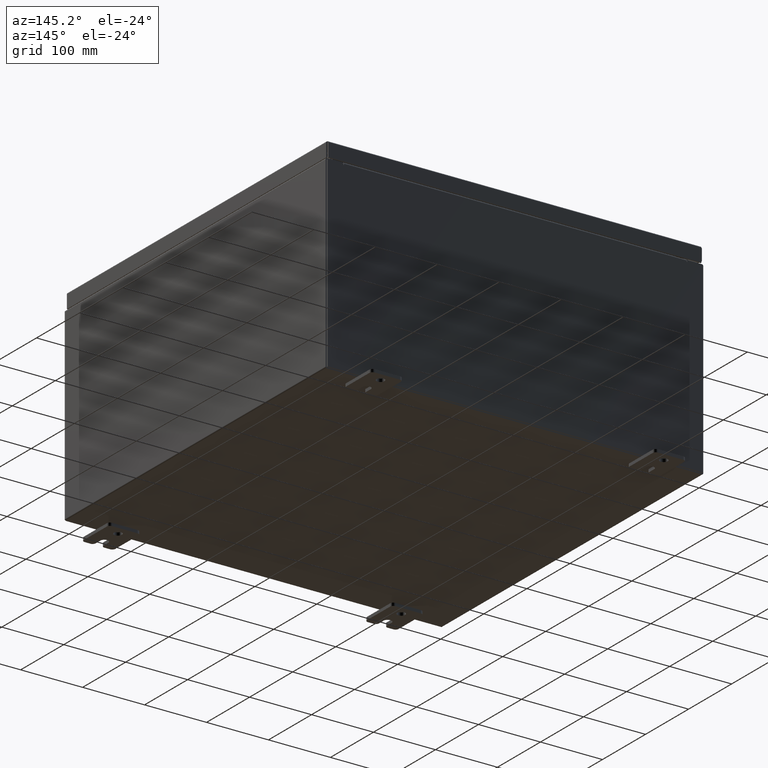
[diagram: clean part render]
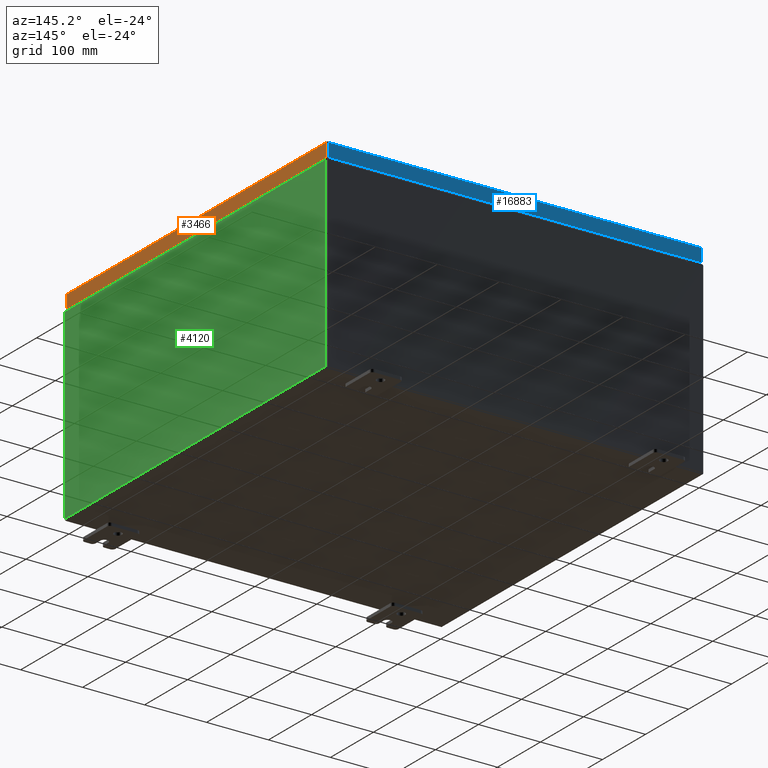
[diagram: same view with three faces highlighted in distinct colors, each labeled with its STEP entity id]
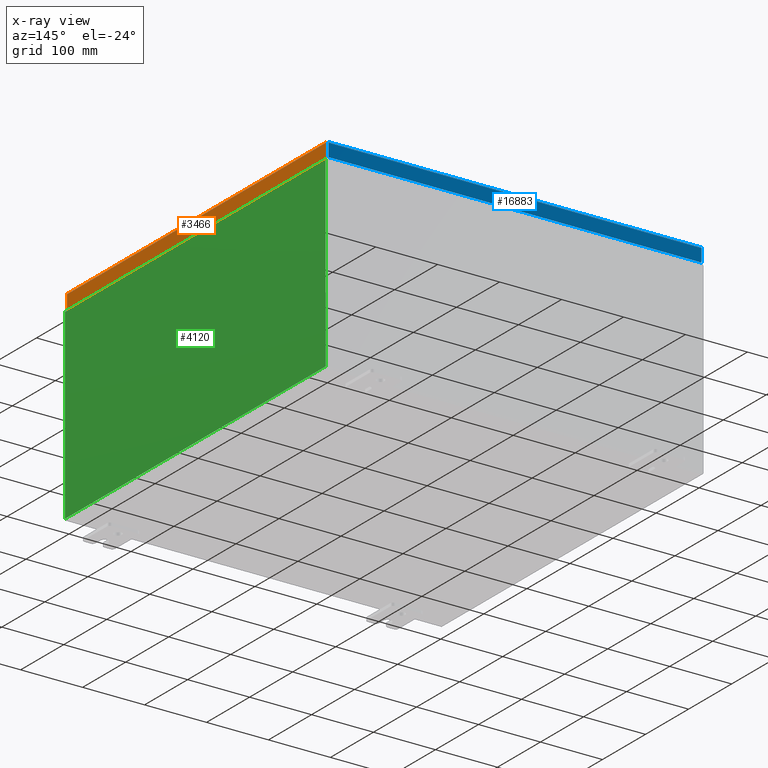
[diagram: x-ray of the same camera — body ghosted, the three highlighted faces saturated]
A machine part, auxiliary view with three faces highlighted in distinct colors.
The next image is the same camera in x-ray (body ghosted, the three faces saturated) — at least one of them is partly hidden behind the body in this view.
Their STEP definitions:

[orange] entity #3466 — the highlighted planar face has unit normal (1, 0, 0).
#841 = CARTESIAN_POINT ( 'NONE',  ( 11.93750000000000200, -11.84865786437626200, -0.9376999999999997600 ) ) ;
#968 = VERTEX_POINT ( 'NONE', #841 ) ;
#1014 = VECTOR ( 'NONE', #34818, 39.37007874015748100 ) ;
#2330 = EDGE_CURVE ( 'NONE', #13234, #37505, #14141, .T. ) ;
#3466 = ADVANCED_FACE ( 'NONE', ( #14070 ), #31506, .T. ) ;
#5226 = EDGE_CURVE ( 'NONE', #37505, #24941, #53107, .T. ) ;
#5248 = VECTOR ( 'NONE', #61123, 39.37007874015748100 ) ;
#5846 = EDGE_LOOP ( 'NONE', ( #26296, #55456, #39901, #57264 ) ) ;
#7068 = CARTESIAN_POINT ( 'NONE',  ( 11.93750000000000200, -11.93750000000000000, -0.9376999999999997600 ) ) ;
#12541 = EDGE_CURVE ( 'NONE', #968, #24941, #36504, .T. ) ;
#13234 = VERTEX_POINT ( 'NONE', #53219 ) ;
#14070 = FACE_OUTER_BOUND ( 'NONE', #5846, .T. ) ;
#14141 = LINE ( 'NONE', #15219, #27248 ) ;
#15077 = DIRECTION ( 'NONE',  ( -2.532419924601866100E-015, -6.982962677686265900E-015, 1.000000000000000000 ) ) ;
#15219 = CARTESIAN_POINT ( 'NONE',  ( 11.93750000000000000, 11.84865786437626900, 1.132303121535597100E-013 ) ) ;
#23758 = CARTESIAN_POINT ( 'NONE',  ( 11.93750000000000000, 0.0000000000000000000, -0.08770000000000008300 ) ) ;
#24941 = VERTEX_POINT ( 'NONE', #53309 ) ;
#24993 = CARTESIAN_POINT ( 'NONE',  ( 11.93750000000000000, 11.84865786437626800, -0.08770000000000008300 ) ) ;
#25102 = VECTOR ( 'NONE', #48928, 39.37007874015748100 ) ;
#26296 = ORIENTED_EDGE ( 'NONE', *, *, #12541, .F. ) ;
#27248 = VECTOR ( 'NONE', #15077, 39.37007874015748100 ) ;
#31506 = PLANE ( 'NONE',  #43637 ) ;
#32349 = DIRECTION ( 'NONE',  ( 1.000000000000000000, 0.0000000000000000000, 2.532419924601866100E-015 ) ) ;
#32818 = LINE ( 'NONE', #7068, #5248 ) ;
#33577 = DIRECTION ( 'NONE',  ( 2.532419924601866100E-015, 0.0000000000000000000, -1.000000000000000000 ) ) ;
#34818 = DIRECTION ( 'NONE',  ( 0.0000000000000000000, -1.000000000000000000, 0.0000000000000000000 ) ) ;
#35525 = CARTESIAN_POINT ( 'NONE',  ( 11.93750000000000000, -11.84865786437626900, -0.07469999999999980800 ) ) ;
#36504 = LINE ( 'NONE', #35525, #25102 ) ;
#37505 = VERTEX_POINT ( 'NONE', #24993 ) ;
#37751 = EDGE_CURVE ( 'NONE', #13234, #968, #32818, .T. ) ;
#38092 = CARTESIAN_POINT ( 'NONE',  ( 11.93750000000000000, 0.0000000000000000000, 3.049157650594635900E-014 ) ) ;
#39901 = ORIENTED_EDGE ( 'NONE', *, *, #2330, .T. ) ;
#43637 = AXIS2_PLACEMENT_3D ( 'NONE', #38092, #32349, #33577 ) ;
#48928 = DIRECTION ( 'NONE',  ( -2.532419924601866100E-015, -6.982962677686265900E-015, 1.000000000000000000 ) ) ;
#53107 = LINE ( 'NONE', #23758, #1014 ) ;
#53219 = CARTESIAN_POINT ( 'NONE',  ( 11.93750000000000200, 11.84865786437627300, -0.9376999999999997600 ) ) ;
#53309 = CARTESIAN_POINT ( 'NONE',  ( 11.93750000000000000, -11.84865786437626900, -0.08770000000000008300 ) ) ;
#55456 = ORIENTED_EDGE ( 'NONE', *, *, #37751, .F. ) ;
#57264 = ORIENTED_EDGE ( 'NONE', *, *, #5226, .T. ) ;
#61123 = DIRECTION ( 'NONE',  ( 0.0000000000000000000, -1.000000000000000000, 0.0000000000000000000 ) ) ;

[blue] entity #16883 — the highlighted planar face has unit normal (0, -1, -0).
#695 = DIRECTION ( 'NONE',  ( -0.0000000000000000000, 2.532419924601857400E-015, -1.000000000000000000 ) ) ;
#960 = DIRECTION ( 'NONE',  ( 1.000000000000000000, -4.379057701015054300E-047, 1.258652478756310100E-016 ) ) ;
#1069 = FACE_OUTER_BOUND ( 'NONE', #2265, .T. ) ;
#2265 = EDGE_LOOP ( 'NONE', ( #6024, #11225, #41343, #13435 ) ) ;
#2601 = CARTESIAN_POINT ( 'NONE',  ( 11.84865786437626900, 11.93750000000000200, -0.9376999999999997600 ) ) ;
#3866 = CARTESIAN_POINT ( 'NONE',  ( -3.805002459576444600E-030, 11.93750000000000000, 3.049157650594625800E-014 ) ) ;
#4661 = VERTEX_POINT ( 'NONE', #2601 ) ;
#4976 = CARTESIAN_POINT ( 'NONE',  ( 11.84865786437626900, 11.93750000000000000, -0.08769999999999789100 ) ) ;
#5503 = DIRECTION ( 'NONE',  ( 0.0000000000000000000, 2.532419924601857400E-015, -1.000000000000000000 ) ) ;
#6024 = ORIENTED_EDGE ( 'NONE', *, *, #28487, .F. ) ;
#7820 = CARTESIAN_POINT ( 'NONE',  ( 11.84865786437626900, 11.93750000000000000, 3.049157650594625800E-014 ) ) ;
#8744 = PLANE ( 'NONE',  #19457 ) ;
#11078 = LINE ( 'NONE', #7820, #34136 ) ;
#11225 = ORIENTED_EDGE ( 'NONE', *, *, #14056, .T. ) ;
#11709 = CARTESIAN_POINT ( 'NONE',  ( -11.93749999999999800, 11.93750000000000000, -0.08770000000000008300 ) ) ;
#12908 = VECTOR ( 'NONE', #695, 39.37007874015748100 ) ;
#13435 = ORIENTED_EDGE ( 'NONE', *, *, #50812, .F. ) ;
#14056 = EDGE_CURVE ( 'NONE', #58765, #4661, #11078, .T. ) ;
#14680 = VERTEX_POINT ( 'NONE', #43753 ) ;
#15050 = VECTOR ( 'NONE', #960, 39.37007874015748100 ) ;
#16702 = DIRECTION ( 'NONE',  ( -1.000000000000000000, -8.693008950959990500E-032, -9.153836209136798400E-017 ) ) ;
#16883 = ADVANCED_FACE ( 'NONE', ( #1069 ), #8744, .F. ) ;
#18669 = DIRECTION ( 'NONE',  ( 0.0000000000000000000, 2.532419924601857400E-015, -1.000000000000000000 ) ) ;
#19039 = LINE ( 'NONE', #11709, #43541 ) ;
#19457 = AXIS2_PLACEMENT_3D ( 'NONE', #3866, #47963, #18669 ) ;
#28487 = EDGE_CURVE ( 'NONE', #58765, #48220, #19039, .T. ) ;
#30266 = CARTESIAN_POINT ( 'NONE',  ( -11.93749999999999800, 11.93750000000000200, -0.9377000000000028600 ) ) ;
#34136 = VECTOR ( 'NONE', #5503, 39.37007874015748100 ) ;
#38909 = CARTESIAN_POINT ( 'NONE',  ( -11.84865786437626600, 11.93750000000000000, -0.08769999999999898700 ) ) ;
#41343 = ORIENTED_EDGE ( 'NONE', *, *, #55551, .F. ) ;
#43541 = VECTOR ( 'NONE', #16702, 39.37007874015748100 ) ;
#43753 = CARTESIAN_POINT ( 'NONE',  ( -11.84865786437626600, 11.93750000000000200, -0.9377000000000028600 ) ) ;
#47963 = DIRECTION ( 'NONE',  ( 3.187436615351995300E-031, -1.000000000000000000, -2.532419924601857400E-015 ) ) ;
#48220 = VERTEX_POINT ( 'NONE', #38909 ) ;
#49547 = LINE ( 'NONE', #30266, #15050 ) ;
#50812 = EDGE_CURVE ( 'NONE', #48220, #14680, #52070, .T. ) ;
#52070 = LINE ( 'NONE', #59409, #12908 ) ;
#55551 = EDGE_CURVE ( 'NONE', #14680, #4661, #49547, .T. ) ;
#58765 = VERTEX_POINT ( 'NONE', #4976 ) ;
#59409 = CARTESIAN_POINT ( 'NONE',  ( -11.84865786437626600, 11.93750000000000000, -0.07469999999999980800 ) ) ;

[green] entity #4120 — the highlighted planar face has unit normal (-1, 0, 0).
#574 = DIRECTION ( 'NONE',  ( -0.0000000000000000000, -1.000000000000000000, -0.0000000000000000000 ) ) ;
#1851 = DIRECTION ( 'NONE',  ( -0.0000000000000000000, -1.000000000000000000, -0.0000000000000000000 ) ) ;
#2991 = VECTOR ( 'NONE', #45314, 39.37007874015748100 ) ;
#4120 = ADVANCED_FACE ( 'NONE', ( #44737 ), #46481, .F. ) ;
#5063 = AXIS2_PLACEMENT_3D ( 'NONE', #48386, #49454, #50084 ) ;
#7847 = EDGE_CURVE ( 'NONE', #48989, #35414, #16002, .T. ) ;
#9634 = CARTESIAN_POINT ( 'NONE',  ( 12.00000000000004100, -11.92530000000000400, 11.83760000000000000 ) ) ;
#9732 = CARTESIAN_POINT ( 'NONE',  ( 12.00000000000004100, 11.92529999999999800, 11.83760000000000000 ) ) ;
#9796 = CARTESIAN_POINT ( 'NONE',  ( 11.99999999999999800, 11.92529999999999800, -3.985953138565242700E-014 ) ) ;
#14736 = ORIENTED_EDGE ( 'NONE', *, *, #61743, .F. ) ;
#15672 = VECTOR ( 'NONE', #37831, 39.37007874015748100 ) ;
#16002 = LINE ( 'NONE', #9796, #2991 ) ;
#17049 = ORIENTED_EDGE ( 'NONE', *, *, #7847, .T. ) ;
#18798 = VECTOR ( 'NONE', #574, 39.37007874015748100 ) ;
#20101 = VERTEX_POINT ( 'NONE', #9634 ) ;
#20466 = EDGE_CURVE ( 'NONE', #20101, #24749, #41748, .T. ) ;
#24749 = VERTEX_POINT ( 'NONE', #37649 ) ;
#32692 = EDGE_CURVE ( 'NONE', #35414, #20101, #57933, .T. ) ;
#35414 = VERTEX_POINT ( 'NONE', #39821 ) ;
#36048 = CARTESIAN_POINT ( 'NONE',  ( 11.99999999999999800, -11.92530000000000400, 0.01299999999999984700 ) ) ;
#37649 = CARTESIAN_POINT ( 'NONE',  ( 11.99999999999999800, -11.92530000000000400, 0.01299999999999984700 ) ) ;
#37831 = DIRECTION ( 'NONE',  ( -3.482016343714355500E-015, 0.0000000000000000000, -1.000000000000000000 ) ) ;
#39821 = CARTESIAN_POINT ( 'NONE',  ( 12.00000000000004100, 11.92529999999999600, 11.83760000000000000 ) ) ;
#41748 = LINE ( 'NONE', #52642, #15672 ) ;
#44737 = FACE_OUTER_BOUND ( 'NONE', #46271, .T. ) ;
#45314 = DIRECTION ( 'NONE',  ( 3.482016343714355500E-015, -1.832640180902292400E-016, 1.000000000000000000 ) ) ;
#46271 = EDGE_LOOP ( 'NONE', ( #57673, #63107, #14736, #17049 ) ) ;
#46481 = PLANE ( 'NONE',  #5063 ) ;
#48386 = CARTESIAN_POINT ( 'NONE',  ( 11.99999999999999800, 0.0000000000000000000, -4.204500978058384000E-014 ) ) ;
#48989 = VERTEX_POINT ( 'NONE', #58386 ) ;
#49454 = DIRECTION ( 'NONE',  ( -1.000000000000000000, 0.0000000000000000000, 3.482016343714355100E-015 ) ) ;
#50084 = DIRECTION ( 'NONE',  ( 3.482016343714355100E-015, 0.0000000000000000000, 1.000000000000000000 ) ) ;
#52642 = CARTESIAN_POINT ( 'NONE',  ( 11.99999999999999800, -11.92530000000000400, -4.204500978058384000E-014 ) ) ;
#52969 = VECTOR ( 'NONE', #1851, 39.37007874015748100 ) ;
#54564 = LINE ( 'NONE', #36048, #52969 ) ;
#57673 = ORIENTED_EDGE ( 'NONE', *, *, #32692, .T. ) ;
#57933 = LINE ( 'NONE', #9732, #18798 ) ;
#58386 = CARTESIAN_POINT ( 'NONE',  ( 11.99999999999999800, 11.92529999999999600, 0.01299999999999984700 ) ) ;
#61743 = EDGE_CURVE ( 'NONE', #48989, #24749, #54564, .T. ) ;
#63107 = ORIENTED_EDGE ( 'NONE', *, *, #20466, .T. ) ;